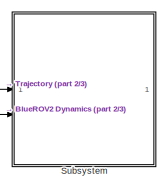
[diagram: root canvas - part 1/3, top center region]
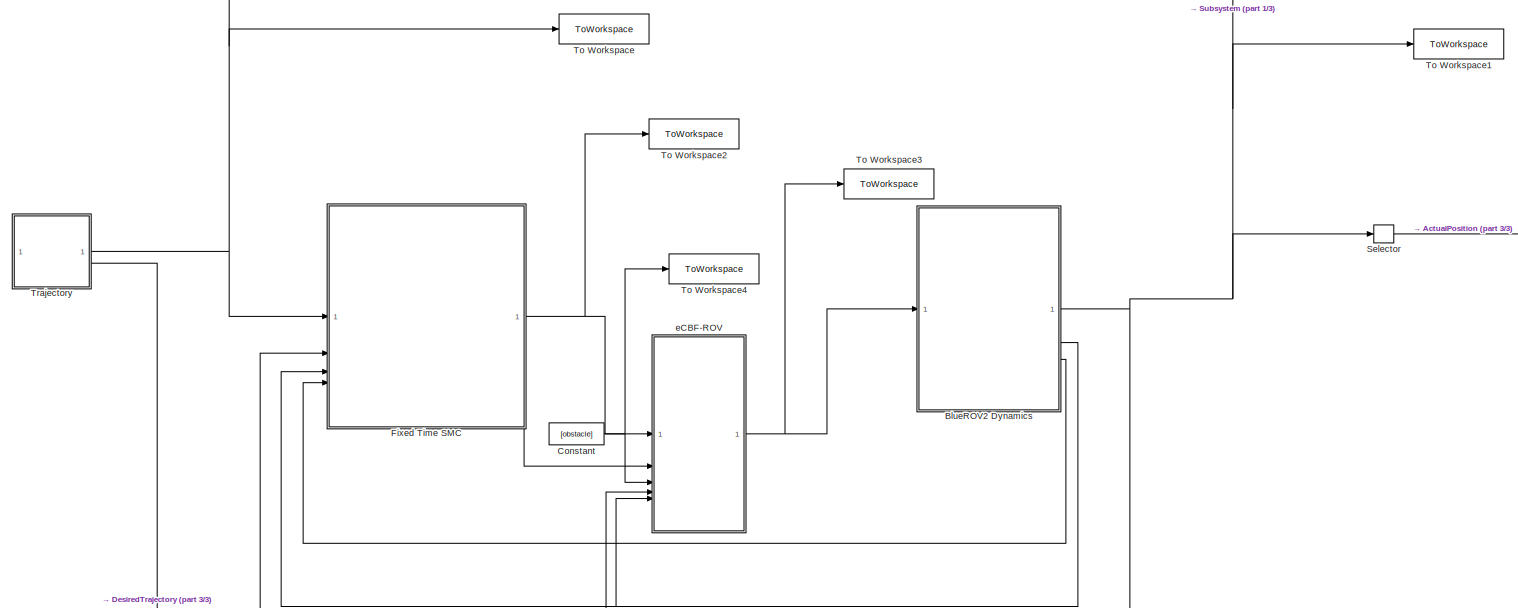
[diagram: root canvas - part 2/3, middle left region]
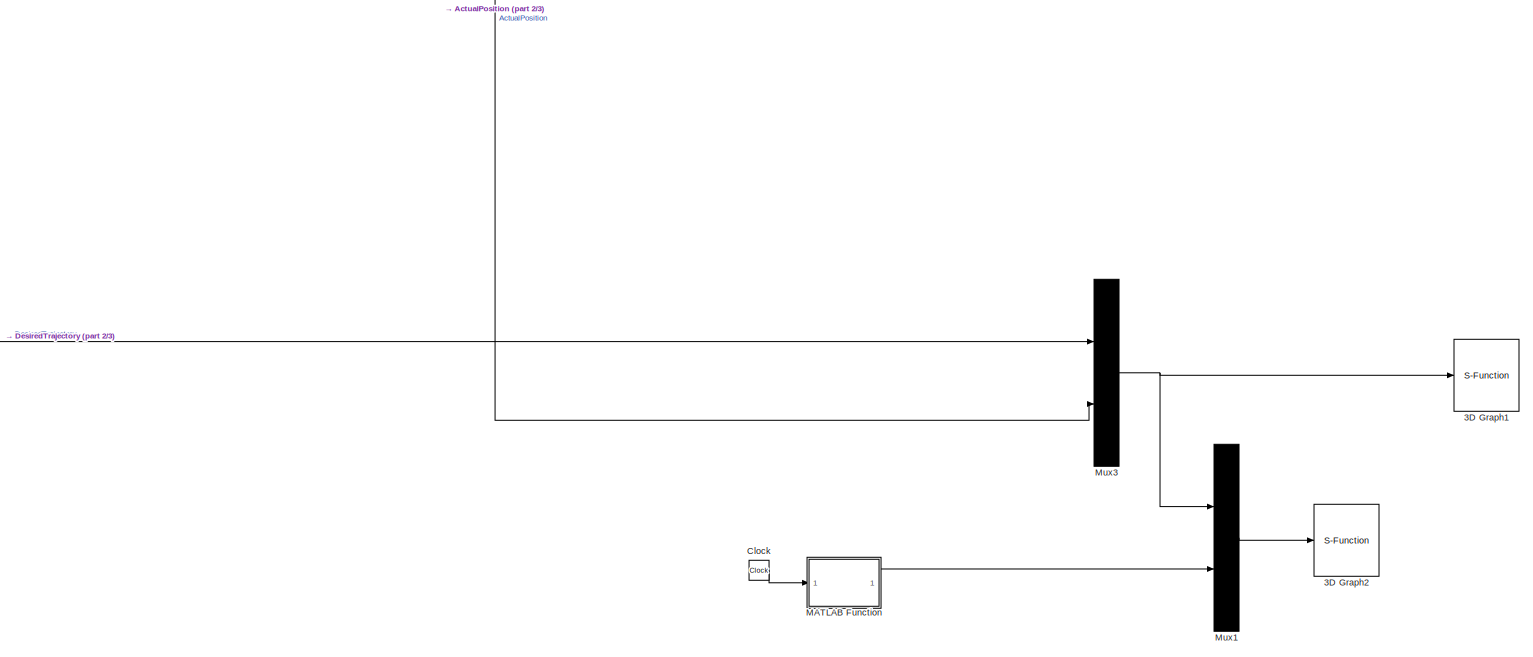
[diagram: root canvas - part 3/3, bottom right region]
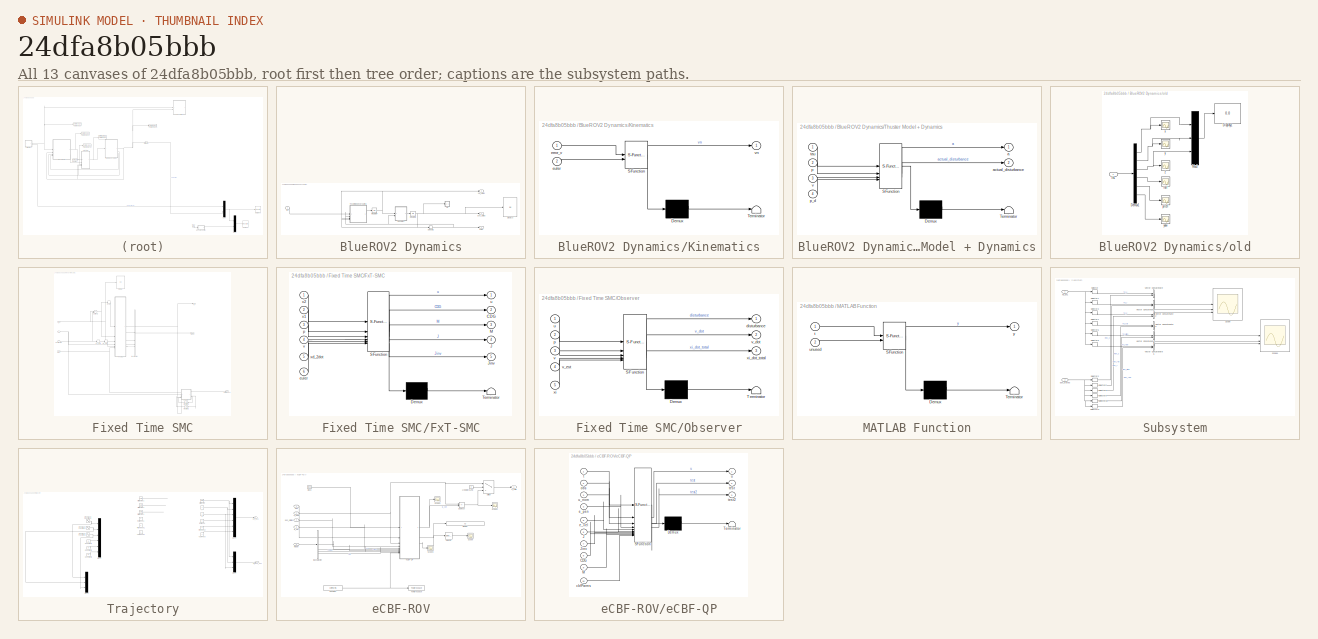
[diagram: thumbnail index - all 13 canvases of the model, root first then tree order]
MODEL slx_24dfa8b05bbb
KIND model
CONFIG AbsTol = auto
CONFIG EnableMultiTasking = off
CONFIG FixedStep = 0.010
CONFIG MaxStep = auto
CONFIG MinStep = auto
CONFIG RelTol = 1e-3
CONFIG SampleTimeConstraint = Unconstrained
CONFIG SolverName = ode4
CONFIG StartTime = 0.0
CONFIG StopTime = 35
BLOCK [S-Function] 3D Graph1
  Commented = on
  CopyFcn = if exist('sfun3d','file'), sfun3d([],[],[],'CopyBlock'); end
  DeleteFcn = if exist('sfun3d','file'), sfun3d([],[],[],'DeleteBlock'); end
  EnableBusSupport = off
  FunctionName = sfun3d
  LoadFcn = if exist('sfun3d','file'), sfun3d([],[],[],'LoadBlock'); end
  NameChangeFcn = if exist('sfun3d','file'), sfun3d([],[],[],'NameChange'); end
  Parameters = ax,T,np,cp,gd,ls,mk,mx,hd,tb
  SFcnIsStateOwnerBlock = off
  SFunctionDeploymentMode = off
BLOCK [S-Function] 3D Graph2
  Commented = on
  CopyFcn = if exist('sfun3d','file'), sfun3d([],[],[],'CopyBlock'); end
  DeleteFcn = if exist('sfun3d','file'), sfun3d([],[],[],'DeleteBlock'); end
  EnableBusSupport = off
  FunctionName = sfun3d
  LoadFcn = if exist('sfun3d','file'), sfun3d([],[],[],'LoadBlock'); end
  NameChangeFcn = if exist('sfun3d','file'), sfun3d([],[],[],'NameChange'); end
  Parameters = ax,T,np,cp,gd,ls,mk,mx,hd,tb
  SFcnIsStateOwnerBlock = off
  SFunctionDeploymentMode = off
BLOCK [SubSystem] BlueROV2 Dynamics
BLOCK [Display] BlueROV2 Dynamics/Display3
  Decimation = 1
BLOCK [Integrator] BlueROV2 Dynamics/Integrator7
  InitialCondition = [0 0 0 0 0 0]'
  LimitOutput = on
  LowerSaturationLimit = [-1 -1 -1 -1 -1 -1]'*2
  UpperSaturationLimit = [1 1 1 1 1 1]'*2
BLOCK [Integrator] BlueROV2 Dynamics/Integrator8
  InitialCondition = [1 1 1 0 0 0]'
BLOCK [SubSystem] BlueROV2 Dynamics/Kinematics
  ErrorFcn = Stateflow.Translate.translate
  PermitHierarchicalResolution = ExplicitOnly
  SFBlockType = MATLAB Function
  TreatAsAtomicUnit = on
BLOCK [Demux] BlueROV2 Dynamics/Kinematics/ Demux 
  Outputs = 1
BLOCK [S-Function] BlueROV2 Dynamics/Kinematics/ SFunction 
  EnableBusSupport = on
  FunctionName = sf_sfun
  PortCounts = [2 2]
  SFcnIsStateOwnerBlock = off
  SFunctionDeploymentMode = off
  Tag = Stateflow S-Function 13
BLOCK [Terminator] BlueROV2 Dynamics/Kinematics/ Terminator 
BLOCK [Inport] BlueROV2 Dynamics/Kinematics/error_v
BLOCK [Inport] BlueROV2 Dynamics/Kinematics/euler
  Port = 2
BLOCK [Outport] BlueROV2 Dynamics/Kinematics/vn
BLOCK [Selector] BlueROV2 Dynamics/Selector1
  IndexOptions = Index vector (dialog)
  Indices = 4:6
  InputPortWidth = 6
  OutputSizes = 1
BLOCK [SubSystem] BlueROV2 Dynamics/Thuster Model + Dynamics
  ErrorFcn = Stateflow.Translate.translate
  NameLocation = top
  PermitHierarchicalResolution = ExplicitOnly
  SFBlockType = MATLAB Function
  TreatAsAtomicUnit = on
BLOCK [Demux] BlueROV2 Dynamics/Thuster Model + Dynamics/ Demux 
  Outputs = 1
BLOCK [S-Function] BlueROV2 Dynamics/Thuster Model + Dynamics/ SFunction 
  EnableBusSupport = on
  FunctionName = sf_sfun
  PortCounts = [4 3]
  SFcnIsStateOwnerBlock = off
  SFunctionDeploymentMode = off
  Tag = Stateflow S-Function 14
BLOCK [Terminator] BlueROV2 Dynamics/Thuster Model + Dynamics/ Terminator 
BLOCK [Outport] BlueROV2 Dynamics/Thuster Model + Dynamics/a
BLOCK [Outport] BlueROV2 Dynamics/Thuster Model + Dynamics/actual_disturbance
  Port = 2
BLOCK [Inport] BlueROV2 Dynamics/Thuster Model + Dynamics/p
  Port = 2
BLOCK [Inport] BlueROV2 Dynamics/Thuster Model + Dynamics/p_d
  Port = 4
BLOCK [Inport] BlueROV2 Dynamics/Thuster Model + Dynamics/tau
BLOCK [Inport] BlueROV2 Dynamics/Thuster Model + Dynamics/v
  Port = 3
BLOCK [Outport] BlueROV2 Dynamics/euler
  NameLocation = right
  Port = 3
BLOCK [SubSystem] BlueROV2 Dynamics/old
  Commented = on
BLOCK [Demux] BlueROV2 Dynamics/old/Demux1
  Outputs = 6
BLOCK [Display] BlueROV2 Dynamics/old/Display1
  Decimation = 1
BLOCK [Inport] BlueROV2 Dynamics/old/In1
BLOCK [Mux] BlueROV2 Dynamics/old/Mux2
  DisplayOption = bar
  Inputs = 3
BLOCK [Scope] BlueROV2 Dynamics/old/pitch
  Floating = off
  NumInputPorts = 1
  ScopeSpecificationString = Simulink.scopes.TimeScopeBlockCfg('CurrentConfiguration', extmgr.ConfigurationSet(extmgr.Configuration('Core','General UI',true),extmgr.Configuration('Core','Source UI',true),extmgr.Configuration('Sources','WiredSimulink',true,'DataLoggingVariableName','ScopeData4'),extmgr.Configuration('Visuals','Time Domain',true,'SerializedDisplays',{struct('MinYLimReal','-0.05522','MaxYLimReal','0.49698','YLab...<+1367ch>
BLOCK [Scope] BlueROV2 Dynamics/old/roll
  Floating = off
  NumInputPorts = 1
  ScopeSpecificationString = Simulink.scopes.TimeScopeBlockCfg('CurrentConfiguration', extmgr.ConfigurationSet(extmgr.Configuration('Core','General UI',true),extmgr.Configuration('Core','Source UI',true),extmgr.Configuration('Sources','WiredSimulink',true,'DataLoggingVariableName','ScopeData7'),extmgr.Configuration('Visuals','Time Domain',true,'SerializedDisplays',{struct('MinYLimReal','-0.05012','MaxYLimReal','0.45104','YLab...<+1367ch>
BLOCK [Scope] BlueROV2 Dynamics/old/x
  Floating = off
  NumInputPorts = 1
  ScopeSpecificationString = Simulink.scopes.TimeScopeBlockCfg('CurrentConfiguration', extmgr.ConfigurationSet(extmgr.Configuration('Core','General UI',true),extmgr.Configuration('Core','Source UI',true),extmgr.Configuration('Sources','WiredSimulink',true,'DataLoggingVariableName','ScopeData11'),extmgr.Configuration('Visuals','Time Domain',true,'SerializedDisplays',{struct('MinYLimReal','-1.00000','MaxYLimReal','9.00000','YLa...<+1368ch>
BLOCK [Scope] BlueROV2 Dynamics/old/y
  Floating = off
  NumInputPorts = 1
  ScopeSpecificationString = Simulink.scopes.TimeScopeBlockCfg('CurrentConfiguration', extmgr.ConfigurationSet(extmgr.Configuration('Core','General UI',true),extmgr.Configuration('Core','Source UI',true),extmgr.Configuration('Sources','WiredSimulink',true,'DataLoggingVariableName','ScopeData12'),extmgr.Configuration('Visuals','Time Domain',true,'SerializedDisplays',{struct('MinYLimReal','-1.12501','MaxYLimReal','10.12505','YL...<+1406ch>
BLOCK [Scope] BlueROV2 Dynamics/old/yaw
  Floating = off
  NumInputPorts = 1
  ScopeSpecificationString = Simulink.scopes.TimeScopeBlockCfg('CurrentConfiguration', extmgr.ConfigurationSet(extmgr.Configuration('Core','General UI',true),extmgr.Configuration('Core','Source UI',true),extmgr.Configuration('Sources','WiredSimulink',true,'DataLoggingVariableName','ScopeData13'),extmgr.Configuration('Visuals','Time Domain',true,'SerializedDisplays',{struct('MinYLimReal','-0.06235','MaxYLimReal','0.56116','YLa...<+1368ch>
BLOCK [Scope] BlueROV2 Dynamics/old/z
  Floating = off
  NumInputPorts = 1
  ScopeSpecificationString = Simulink.scopes.TimeScopeBlockCfg('CurrentConfiguration', extmgr.ConfigurationSet(extmgr.Configuration('Core','General UI',true),extmgr.Configuration('Core','Source UI',true),extmgr.Configuration('Sources','WiredSimulink',true),extmgr.Configuration('Visuals','Time Domain',true,'SerializedDisplays',{struct('MinYLimReal','-1.125','MaxYLimReal','10.12501','YLabelReal','','MinYLimMag','0.00000','MaxYL...<+1328ch>
BLOCK [Outport] BlueROV2 Dynamics/psn_states
  NameLocation = right
BLOCK [Inport] BlueROV2 Dynamics/tau
  NameLocation = left
BLOCK [Outport] BlueROV2 Dynamics/vel_states
  NameLocation = right
  Port = 2
BLOCK [Clock] Clock
  Commented = on
BLOCK [Constant] Constant
  Value = [obstacle]
  VectorParams1D = off
BLOCK [SubSystem] Fixed Time SMC
BLOCK [Derivative] Fixed Time SMC/ e_dot
BLOCK [Derivative] Fixed Time SMC/ eb_dot3
BLOCK [Derivative] Fixed Time SMC/ eb_dot5
BLOCK [BusCreator] Fixed Time SMC/Bus Creator
  DisplayOption = bar
  InheritFromInputs = on
  Inputs = 4
BLOCK [Display] Fixed Time SMC/Display
  Decimation = 1
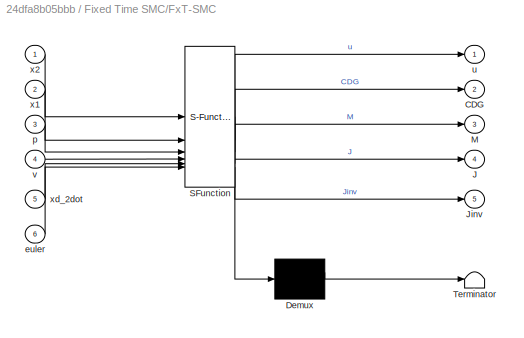
BLOCK [SubSystem] Fixed Time SMC/FxT-SMC
  ErrorFcn = Stateflow.Translate.translate
  PermitHierarchicalResolution = ExplicitOnly
  SFBlockType = MATLAB Function
  TreatAsAtomicUnit = on
BLOCK [Demux] Fixed Time SMC/FxT-SMC/ Demux 
  Outputs = 1
BLOCK [S-Function] Fixed Time SMC/FxT-SMC/ SFunction 
  EnableBusSupport = on
  FunctionName = sf_sfun
  PortCounts = [6 6]
  SFcnIsStateOwnerBlock = off
  SFunctionDeploymentMode = off
  Tag = Stateflow S-Function 11
BLOCK [Terminator] Fixed Time SMC/FxT-SMC/ Terminator 
BLOCK [Outport] Fixed Time SMC/FxT-SMC/CDG
  Port = 2
BLOCK [Outport] Fixed Time SMC/FxT-SMC/J
  Port = 4
BLOCK [Outport] Fixed Time SMC/FxT-SMC/Jinv
  Port = 5
BLOCK [Outport] Fixed Time SMC/FxT-SMC/M
  Port = 3
BLOCK [Inport] Fixed Time SMC/FxT-SMC/euler
  Port = 6
BLOCK [Inport] Fixed Time SMC/FxT-SMC/p
  Port = 3
BLOCK [Outport] Fixed Time SMC/FxT-SMC/u
BLOCK [Inport] Fixed Time SMC/FxT-SMC/v
  Port = 4
BLOCK [Inport] Fixed Time SMC/FxT-SMC/x1
  Port = 2
BLOCK [Inport] Fixed Time SMC/FxT-SMC/x2
BLOCK [Inport] Fixed Time SMC/FxT-SMC/xd_2dot
  Port = 5
BLOCK [Integrator] Fixed Time SMC/Integrator2
  Commented = on
  NameLocation = top
BLOCK [Integrator] Fixed Time SMC/Integrator3
  Commented = on
  NameLocation = top
BLOCK [SubSystem] Fixed Time SMC/Observer
  Commented = on
  ErrorFcn = Stateflow.Translate.translate
  PermitHierarchicalResolution = ExplicitOnly
  SFBlockType = MATLAB Function
  TreatAsAtomicUnit = on
BLOCK [Demux] Fixed Time SMC/Observer/ Demux 
  Outputs = 1
BLOCK [S-Function] Fixed Time SMC/Observer/ SFunction 
  EnableBusSupport = on
  FunctionName = sf_sfun
  PortCounts = [5 4]
  SFcnIsStateOwnerBlock = off
  SFunctionDeploymentMode = off
  Tag = Stateflow S-Function 1
BLOCK [Terminator] Fixed Time SMC/Observer/ Terminator 
BLOCK [Outport] Fixed Time SMC/Observer/disturbance
BLOCK [Inport] Fixed Time SMC/Observer/p
  Port = 2
BLOCK [Inport] Fixed Time SMC/Observer/u
BLOCK [Inport] Fixed Time SMC/Observer/v
  Port = 3
BLOCK [Outport] Fixed Time SMC/Observer/v_dot
  Port = 2
BLOCK [Inport] Fixed Time SMC/Observer/v_est
  Port = 4
BLOCK [Inport] Fixed Time SMC/Observer/xi
  Port = 5
BLOCK [Outport] Fixed Time SMC/Observer/xi_dot_total
  Port = 3
BLOCK [Sum] Fixed Time SMC/Subtract1
  IconShape = rectangular
  Inputs = +-
BLOCK [Inport] Fixed Time SMC/Xd Trajectory
  NameLocation = left
BLOCK [Outport] Fixed Time SMC/disturbance
  NameLocation = top
  Port = 2
BLOCK [Inport] Fixed Time SMC/euler
  NameLocation = left
  Port = 4
BLOCK [Outport] Fixed Time SMC/model
  Port = 3
BLOCK [Inport] Fixed Time SMC/p
  NameLocation = left
  Port = 2
BLOCK [Outport] Fixed Time SMC/u
BLOCK [Inport] Fixed Time SMC/v
  NameLocation = left
  Port = 3
BLOCK [SubSystem] MATLAB Function
  Commented = on
  ErrorFcn = Stateflow.Translate.translate
  PermitHierarchicalResolution = ExplicitOnly
  SFBlockType = MATLAB Function
  TreatAsAtomicUnit = on
BLOCK [Demux] MATLAB Function/ Demux 
  Outputs = 1
BLOCK [S-Function] MATLAB Function/ SFunction 
  EnableBusSupport = on
  FunctionName = sf_sfun
  PortCounts = [2 2]
  SFcnIsStateOwnerBlock = off
  SFunctionDeploymentMode = off
  Tag = Stateflow S-Function 2
BLOCK [Terminator] MATLAB Function/ Terminator 
BLOCK [Inport] MATLAB Function/t
BLOCK [Inport] MATLAB Function/unused
  Port = 2
BLOCK [Outport] MATLAB Function/y
BLOCK [Mux] Mux1
  Commented = on
  DisplayOption = bar
  Inputs = 2
BLOCK [Mux] Mux3
  DisplayOption = bar
  Inputs = 2
BLOCK [Selector] Selector
  IndexOptions = Index vector (dialog)
  Indices = 1:3
  InputPortWidth = 6
  OutputSizes = 1
BLOCK [SubSystem] Subsystem
  Commented = on
BLOCK [Scope] Subsystem/Scope
  Floating = off
  NumInputPorts = 3
  ScopeSpecificationString = Simulink.scopes.TimeScopeBlockCfg('CurrentConfiguration', extmgr.ConfigurationSet(extmgr.Configuration('Core','General UI',true),extmgr.Configuration('Core','Source UI',true),extmgr.Configuration('Sources','WiredSimulink',true,'DataLoggingVariableName','ScopeData1'),extmgr.Configuration('Visuals','Time Domain',true,'SerializedDisplays',{struct('MinYLimReal','-0.25','MaxYLimReal','12.25','YLabelRea...<+2786ch>
BLOCK [Scope] Subsystem/Scope1
  Floating = off
  NumInputPorts = 3
  ScopeSpecificationString = Simulink.scopes.TimeScopeBlockCfg('CurrentConfiguration', extmgr.ConfigurationSet(extmgr.Configuration('Core','General UI',true),extmgr.Configuration('Core','Source UI',true),extmgr.Configuration('Sources','WiredSimulink',true,'DataLoggingVariableName','ScopeData2'),extmgr.Configuration('Visuals','Time Domain',true,'SerializedDisplays',{struct('MinYLimReal','-0.00962','MaxYLimReal','0.00193','YLab...<+2783ch>
BLOCK [Selector] Subsystem/Selector
  IndexOptions = Index vector (dialog)
  Indices = 1
  InputPortWidth = 6
  OutputSizes = 1
BLOCK [Selector] Subsystem/Selector1
  IndexOptions = Index vector (dialog)
  Indices = 2
  InputPortWidth = 6
  OutputSizes = 1
BLOCK [Selector] Subsystem/Selector10
  IndexOptions = Index vector (dialog)
  Indices = 5
  InputPortWidth = 6
  OutputSizes = 1
BLOCK [Selector] Subsystem/Selector11
  IndexOptions = Index vector (dialog)
  Indices = 6
  InputPortWidth = 6
  OutputSizes = 1
BLOCK [Selector] Subsystem/Selector2
  IndexOptions = Index vector (dialog)
  Indices = 1
  InputPortWidth = 6
  OutputSizes = 1
BLOCK [Selector] Subsystem/Selector3
  IndexOptions = Index vector (dialog)
  Indices = 3
  InputPortWidth = 6
  OutputSizes = 1
BLOCK [Selector] Subsystem/Selector4
  IndexOptions = Index vector (dialog)
  Indices = 4
  InputPortWidth = 6
  OutputSizes = 1
BLOCK [Selector] Subsystem/Selector5
  IndexOptions = Index vector (dialog)
  Indices = 5
  InputPortWidth = 6
  OutputSizes = 1
BLOCK [Selector] Subsystem/Selector6
  IndexOptions = Index vector (dialog)
  Indices = 6
  InputPortWidth = 6
  OutputSizes = 1
BLOCK [Selector] Subsystem/Selector7
  IndexOptions = Index vector (dialog)
  Indices = 2
  InputPortWidth = 6
  OutputSizes = 1
BLOCK [Selector] Subsystem/Selector8
  IndexOptions = Index vector (dialog)
  Indices = 3
  InputPortWidth = 6
  OutputSizes = 1
BLOCK [Selector] Subsystem/Selector9
  IndexOptions = Index vector (dialog)
  Indices = 4
  InputPortWidth = 6
  OutputSizes = 1
BLOCK [Concatenate] Subsystem/Vector Concatenate
BLOCK [Concatenate] Subsystem/Vector Concatenate1
BLOCK [Concatenate] Subsystem/Vector Concatenate2
BLOCK [Concatenate] Subsystem/Vector Concatenate3
BLOCK [Concatenate] Subsystem/Vector Concatenate4
BLOCK [Concatenate] Subsystem/Vector Concatenate5
BLOCK [Inport] Subsystem/Xd_6x1
BLOCK [Inport] Subsystem/psn_states
  Port = 2
BLOCK [ToWorkspace] To Workspace
  FixptAsFi = on
  MaxDataPoints = inf
  SampleTime = -1
  SaveFormat = Timeseries
  VariableName = trajectory
BLOCK [ToWorkspace] To Workspace1
  FixptAsFi = on
  MaxDataPoints = inf
  SampleTime = -1
  SaveFormat = Timeseries
  VariableName = state
BLOCK [ToWorkspace] To Workspace2
  FixptAsFi = on
  MaxDataPoints = inf
  SampleTime = -1
  SaveFormat = Timeseries
  VariableName = u_nom
BLOCK [ToWorkspace] To Workspace3
  FixptAsFi = on
  MaxDataPoints = inf
  SampleTime = -1
  SaveFormat = Timeseries
  VariableName = u_cbf
BLOCK [ToWorkspace] To Workspace4
  FixptAsFi = on
  MaxDataPoints = 1
  SampleTime = -1
  VariableName = obstacle
BLOCK [SubSystem] Trajectory
BLOCK [Constant] Trajectory/Constant1
  Commented = on
  Value = 0.4
BLOCK [Constant] Trajectory/Constant2
  Commented = on
  Value = 0.4
BLOCK [Constant] Trajectory/Constant6
  Commented = on
  Value = 0.4
BLOCK [Mux] Trajectory/Mux1
  DisplayOption = bar
  Inputs = 6
BLOCK [Mux] Trajectory/Mux2
  Commented = on
  DisplayOption = bar
  Inputs = 6
BLOCK [Mux] Trajectory/Mux3
  Commented = on
  DisplayOption = bar
  Inputs = 3
BLOCK [Mux] Trajectory/Mux4
  DisplayOption = bar
  Inputs = 3
BLOCK [Constant] Trajectory/Pitch pose
  NameLocation = left
  Value = 0
BLOCK [Constant] Trajectory/Pitch pose1
  Commented = on
  NameLocation = left
  Value = 0
BLOCK [Constant] Trajectory/Roll pose
  NameLocation = left
  Value = 0
BLOCK [Constant] Trajectory/Roll pose1
  Commented = on
  NameLocation = left
  Value = 0
BLOCK [Sin] Trajectory/Sine Wave Function3
  Amplitude = 3
  Bias = 5
  Commented = on
  Frequency = 0.2
  SampleTime = 0
BLOCK [Sin] Trajectory/Sine Wave Function4
  Amplitude = 4
  Bias = 5
  Commented = on
  Frequency = 0.3
  Phase = pi/2
  SampleTime = 0
BLOCK [Sin] Trajectory/Sine Wave Function5
  Amplitude = 4
  Bias = 5
  Commented = on
  Frequency = 0.25
  SampleTime = 0
BLOCK [Outport] Trajectory/Trj_psn_3x1
  NameLocation = right
  Port = 2
BLOCK [Reference] Trajectory/X-trajectory  REF=simulink/Sources/Ramp
  NameLocation = left
  SourceBlock = simulink/Sources/Ramp
  SourceType = Ramp
BLOCK [Reference] Trajectory/X-trajectory1  REF=simulink/Sources/Ramp
  Commented = on
  NameLocation = left
  SourceBlock = simulink/Sources/Ramp
  SourceType = Ramp
BLOCK [Outport] Trajectory/Xd_6x1
  NameLocation = right
BLOCK [Reference] Trajectory/Y-trajectory1  REF=simulink/Sources/Ramp
  Commented = on
  NameLocation = left
  SourceBlock = simulink/Sources/Ramp
  SourceType = Ramp
BLOCK [Constant] Trajectory/Yaw Pose
  NameLocation = left
  Value = 0
BLOCK [Constant] Trajectory/Yaw Pose1
  Commented = on
  NameLocation = left
  Value = 0
BLOCK [Reference] Trajectory/Z-trajectory1  REF=simulink/Sources/Ramp
  Commented = on
  NameLocation = left
  SourceBlock = simulink/Sources/Ramp
  SourceType = Ramp
BLOCK [Constant] Trajectory/y
  NameLocation = left
  Value = 0
BLOCK [Constant] Trajectory/z
  NameLocation = left
  Value = 0
BLOCK [SubSystem] eCBF-ROV
BLOCK [Constant] eCBF-ROV/1 = NOM 0 = SAFE
  NameLocation = left
  Value = 0
BLOCK [BusSelector] eCBF-ROV/Bus Selector
  OutputSignals = J,Jinv,CDG,M
BLOCK [Clock] eCBF-ROV/Clock
BLOCK [Constant] eCBF-ROV/Constant
  Value = cbfParms
BLOCK [Display] eCBF-ROV/Display
  Commented = on
  Decimation = 1
BLOCK [Scope] eCBF-ROV/Scope
  Commented = on
  Floating = off
  NumInputPorts = 1
  ScopeSpecificationString = Simulink.scopes.TimeScopeBlockCfg('CurrentConfiguration', extmgr.ConfigurationSet(extmgr.Configuration('Core','General UI',true),extmgr.Configuration('Core','Source UI',true),extmgr.Configuration('Sources','WiredSimulink',true,'DataLoggingVariableName','ScopeData2'),extmgr.Configuration('Visuals','Time Domain',true,'SerializedDisplays',{struct('MinYLimReal','-1891.07729','MaxYLimReal','728.77123',...<+1437ch>
BLOCK [Scope] eCBF-ROV/Scope1
  Commented = on
  Floating = off
  NumInputPorts = 1
  ScopeSpecificationString = Simulink.scopes.TimeScopeBlockCfg('CurrentConfiguration', extmgr.ConfigurationSet(extmgr.Configuration('Core','General UI',true),extmgr.Configuration('Core','Source UI',true),extmgr.Configuration('Sources','WiredSimulink',true,'DataLoggingVariableName','ScopeData1'),extmgr.Configuration('Visuals','Time Domain',true,'SerializedDisplays',{struct('MinYLimReal','-18759.6451','MaxYLimReal','30903.31178...<+1518ch>
BLOCK [Scope] eCBF-ROV/Scope2
  Commented = on
  Floating = off
  NumInputPorts = 1
  ScopeSpecificationString = Simulink.scopes.TimeScopeBlockCfg('CurrentConfiguration', extmgr.ConfigurationSet(extmgr.Configuration('Core','General UI',true),extmgr.Configuration('Core','Source UI',true),extmgr.Configuration('Sources','WiredSimulink',true,'DataLoggingVariableName','ScopeData2'),extmgr.Configuration('Visuals','Time Domain',true,'SerializedDisplays',{struct('MinYLimReal','-2690.87503','MaxYLimReal','4287.54474'...<+1510ch>
BLOCK [Scope] eCBF-ROV/Scope3
  Commented = on
  Floating = off
  NumInputPorts = 1
  ScopeSpecificationString = Simulink.scopes.TimeScopeBlockCfg('CurrentConfiguration', extmgr.ConfigurationSet(extmgr.Configuration('Core','General UI',true),extmgr.Configuration('Core','Source UI',true),extmgr.Configuration('Sources','WiredSimulink',true,'DataLoggingVariableName','ScopeData1'),extmgr.Configuration('Visuals','Time Domain',true,'SerializedDisplays',{struct('MinYLimReal','-1891.07729','MaxYLimReal','728.77123',...<+1531ch>
BLOCK [Selector] eCBF-ROV/Selector
  Commented = on
  IndexOptions = Index vector (dialog)
  Indices = 4
  InputPortWidth = 4
  OutputSizes = 1
BLOCK [Sum] eCBF-ROV/Subtract
  IconShape = rectangular
  Inputs = +-
BLOCK [Switch] eCBF-ROV/Switch
  Criteria = u2 > Threshold
  InputSameDT = off
  SaturateOnIntegerOverflow = off
BLOCK [ToWorkspace] eCBF-ROV/To Workspace
  FixptAsFi = on
  MaxDataPoints = 1
  SampleTime = -1
  VariableName = cbf
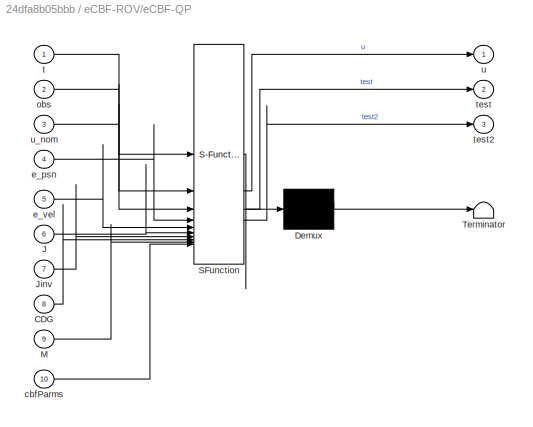
BLOCK [SubSystem] eCBF-ROV/eCBF-QP
  ErrorFcn = Stateflow.Translate.translate
  PermitHierarchicalResolution = ExplicitOnly
  SFBlockType = MATLAB Function
  TreatAsAtomicUnit = on
BLOCK [Demux] eCBF-ROV/eCBF-QP/ Demux 
  Outputs = 1
BLOCK [S-Function] eCBF-ROV/eCBF-QP/ SFunction 
  EnableBusSupport = on
  FunctionName = sf_sfun
  PortCounts = [10 4]
  SFcnIsStateOwnerBlock = off
  SFunctionDeploymentMode = off
  Tag = Stateflow S-Function 4
BLOCK [Terminator] eCBF-ROV/eCBF-QP/ Terminator 
BLOCK [Inport] eCBF-ROV/eCBF-QP/CDG
  Port = 8
BLOCK [Inport] eCBF-ROV/eCBF-QP/J
  Port = 6
BLOCK [Inport] eCBF-ROV/eCBF-QP/Jinv
  Port = 7
BLOCK [Inport] eCBF-ROV/eCBF-QP/M
  Port = 9
BLOCK [Inport] eCBF-ROV/eCBF-QP/cbfParms
  Port = 10
BLOCK [Inport] eCBF-ROV/eCBF-QP/e_psn
  Port = 4
BLOCK [Inport] eCBF-ROV/eCBF-QP/e_vel
  Port = 5
BLOCK [Inport] eCBF-ROV/eCBF-QP/obs
  Port = 2
BLOCK [Inport] eCBF-ROV/eCBF-QP/t
BLOCK [Outport] eCBF-ROV/eCBF-QP/test
  Port = 2
BLOCK [Outport] eCBF-ROV/eCBF-QP/test2
  Port = 3
BLOCK [Outport] eCBF-ROV/eCBF-QP/u
BLOCK [Inport] eCBF-ROV/eCBF-QP/u_nom
  Port = 3
BLOCK [Inport] eCBF-ROV/e_vel
  NameLocation = left
  Port = 5
BLOCK [Inport] eCBF-ROV/model
  Port = 2
BLOCK [Inport] eCBF-ROV/obs
  NameLocation = left
  Port = 3
BLOCK [Inport] eCBF-ROV/psn_states
  NameLocation = left
  Port = 4
BLOCK [Inport] eCBF-ROV/u_nom
  NameLocation = left
BLOCK [Outport] eCBF-ROV/u_safe
NET BlueROV2 Dynamics/Integrator7:1 -> BlueROV2 Dynamics/Kinematics:1, BlueROV2 Dynamics/Thuster Model + Dynamics:3, BlueROV2 Dynamics/vel_states:1
NET BlueROV2 Dynamics/Integrator8:1 -> BlueROV2 Dynamics/Display3:1, BlueROV2 Dynamics/Selector1:1, BlueROV2 Dynamics/Thuster Model + Dynamics:4, BlueROV2 Dynamics/old:1, BlueROV2 Dynamics/psn_states:1
LINE BlueROV2 Dynamics/Kinematics:1 -> BlueROV2 Dynamics/Integrator8:1
NET BlueROV2 Dynamics/Selector1:1 -> BlueROV2 Dynamics/Kinematics:2, BlueROV2 Dynamics/Thuster Model + Dynamics:2, BlueROV2 Dynamics/euler:1
LINE BlueROV2 Dynamics/Thuster Model + Dynamics:1 -> BlueROV2 Dynamics/Integrator7:1
NET BlueROV2 Dynamics/old/Demux1:1 -> BlueROV2 Dynamics/old/Mux2:1, BlueROV2 Dynamics/old/x:1
NET BlueROV2 Dynamics/old/Demux1:2 -> BlueROV2 Dynamics/old/Mux2:2, BlueROV2 Dynamics/old/y:1
NET BlueROV2 Dynamics/old/Demux1:3 -> BlueROV2 Dynamics/old/Mux2:3, BlueROV2 Dynamics/old/z:1
LINE BlueROV2 Dynamics/old/Demux1:4 -> BlueROV2 Dynamics/old/roll:1
LINE BlueROV2 Dynamics/old/Demux1:5 -> BlueROV2 Dynamics/old/pitch:1
LINE BlueROV2 Dynamics/old/Demux1:6 -> BlueROV2 Dynamics/old/yaw:1
LINE BlueROV2 Dynamics/old/In1:1 -> BlueROV2 Dynamics/old/Demux1:1
LINE BlueROV2 Dynamics/old/Mux2:1 -> BlueROV2 Dynamics/old/Display1:1
LINE BlueROV2 Dynamics/tau:1 -> BlueROV2 Dynamics/Thuster Model + Dynamics:1
NET BlueROV2 Dynamics:1 -> Fixed Time SMC:2, Selector:1, Subsystem:2, To Workspace1:1, eCBF-ROV:4
NET BlueROV2 Dynamics:2 -> Fixed Time SMC:3, eCBF-ROV:5
LINE BlueROV2 Dynamics:3 -> Fixed Time SMC:4
LINE Clock:1 -> MATLAB Function:1
NET Constant:1 -> To Workspace4:1, eCBF-ROV:3
LINE Fixed Time SMC/ e_dot:1 -> Fixed Time SMC/FxT-SMC:1
LINE Fixed Time SMC/ eb_dot3:1 -> Fixed Time SMC/FxT-SMC:5
LINE Fixed Time SMC/ eb_dot5:1 -> Fixed Time SMC/ eb_dot3:1
LINE Fixed Time SMC/Bus Creator:1 -> Fixed Time SMC/model:1
NET Fixed Time SMC/FxT-SMC:1 -> Fixed Time SMC/Observer:1, Fixed Time SMC/u:1
LINE Fixed Time SMC/FxT-SMC:2 -> Fixed Time SMC/Bus Creator:1
LINE Fixed Time SMC/FxT-SMC:3 -> Fixed Time SMC/Bus Creator:2
LINE Fixed Time SMC/FxT-SMC:4 -> Fixed Time SMC/Bus Creator:3
LINE Fixed Time SMC/FxT-SMC:5 -> Fixed Time SMC/Bus Creator:4
LINE Fixed Time SMC/Integrator2:1 -> Fixed Time SMC/Observer:4
LINE Fixed Time SMC/Integrator3:1 -> Fixed Time SMC/Observer:5
LINE Fixed Time SMC/Observer:1 -> Fixed Time SMC/disturbance:1
LINE Fixed Time SMC/Observer:2 -> Fixed Time SMC/Integrator2:1
LINE Fixed Time SMC/Observer:3 -> Fixed Time SMC/Integrator3:1
NET Fixed Time SMC/Subtract1:1 -> Fixed Time SMC/ e_dot:1, Fixed Time SMC/FxT-SMC:2
NET Fixed Time SMC/Xd Trajectory:1 -> Fixed Time SMC/ eb_dot5:1, Fixed Time SMC/Subtract1:2
NET Fixed Time SMC/euler:1 -> Fixed Time SMC/FxT-SMC:6, Fixed Time SMC/Observer:2
NET Fixed Time SMC/p:1 -> Fixed Time SMC/Display:1, Fixed Time SMC/FxT-SMC:3, Fixed Time SMC/Subtract1:1
NET Fixed Time SMC/v:1 -> Fixed Time SMC/FxT-SMC:4, Fixed Time SMC/Observer:3
NET Fixed Time SMC:1 -> To Workspace2:1, eCBF-ROV:1
LINE Fixed Time SMC:3 -> eCBF-ROV:2
LINE MATLAB Function:1 -> Mux1:2
LINE Mux1:1 -> 3D Graph2:1
NET Mux3:1 -> 3D Graph1:1, Mux1:1
LINE Selector:1 -> Mux3:2
LINE Subsystem/Selector10:1 -> Subsystem/Vector Concatenate4:2
LINE Subsystem/Selector11:1 -> Subsystem/Vector Concatenate5:2
LINE Subsystem/Selector1:1 -> Subsystem/Vector Concatenate1:1
LINE Subsystem/Selector2:1 -> Subsystem/Vector Concatenate:2
LINE Subsystem/Selector3:1 -> Subsystem/Vector Concatenate2:1
LINE Subsystem/Selector4:1 -> Subsystem/Vector Concatenate3:1
LINE Subsystem/Selector5:1 -> Subsystem/Vector Concatenate4:1
LINE Subsystem/Selector6:1 -> Subsystem/Vector Concatenate5:1
LINE Subsystem/Selector7:1 -> Subsystem/Vector Concatenate1:2
LINE Subsystem/Selector8:1 -> Subsystem/Vector Concatenate2:2
LINE Subsystem/Selector9:1 -> Subsystem/Vector Concatenate3:2
LINE Subsystem/Selector:1 -> Subsystem/Vector Concatenate:1
LINE Subsystem/Vector Concatenate1:1 -> Subsystem/Scope:2
LINE Subsystem/Vector Concatenate2:1 -> Subsystem/Scope:3
LINE Subsystem/Vector Concatenate3:1 -> Subsystem/Scope1:1
LINE Subsystem/Vector Concatenate4:1 -> Subsystem/Scope1:2
LINE Subsystem/Vector Concatenate5:1 -> Subsystem/Scope1:3
LINE Subsystem/Vector Concatenate:1 -> Subsystem/Scope:1
NET Subsystem/Xd_6x1:1 -> Subsystem/Selector1:1, Subsystem/Selector3:1, Subsystem/Selector4:1, Subsystem/Selector5:1, Subsystem/Selector6:1, Subsystem/Selector:1
NET Subsystem/psn_states:1 -> Subsystem/Selector10:1, Subsystem/Selector11:1, Subsystem/Selector2:1, Subsystem/Selector7:1, Subsystem/Selector8:1, Subsystem/Selector9:1
LINE Trajectory/Constant1:1 -> Trajectory/Mux2:4
LINE Trajectory/Constant2:1 -> Trajectory/Mux2:5
LINE Trajectory/Constant6:1 -> Trajectory/Mux2:6
LINE Trajectory/Mux1:1 -> Trajectory/Xd_6x1:1
LINE Trajectory/Mux4:1 -> Trajectory/Trj_psn_3x1:1
LINE Trajectory/Pitch pose:1 -> Trajectory/Mux1:5
LINE Trajectory/Roll pose:1 -> Trajectory/Mux1:4
NET Trajectory/Sine Wave Function3:1 -> Trajectory/Mux2:1, Trajectory/Mux3:1
NET Trajectory/Sine Wave Function4:1 -> Trajectory/Mux2:2, Trajectory/Mux3:2
NET Trajectory/Sine Wave Function5:1 -> Trajectory/Mux2:3, Trajectory/Mux3:3
NET Trajectory/X-trajectory:1 -> Trajectory/Mux1:1, Trajectory/Mux4:1
LINE Trajectory/Yaw Pose:1 -> Trajectory/Mux1:6
NET Trajectory/y:1 -> Trajectory/Mux1:2, Trajectory/Mux4:2
NET Trajectory/z:1 -> Trajectory/Mux1:3, Trajectory/Mux4:3
NET Trajectory:1 -> Fixed Time SMC:1, Subsystem:1, To Workspace:1
LINE Trajectory:2 -> Mux3:1
LINE eCBF-ROV/1 = NOM 0 = SAFE:1 -> eCBF-ROV/Switch:2
LINE eCBF-ROV/Bus Selector:1 -> eCBF-ROV/eCBF-QP:6
LINE eCBF-ROV/Bus Selector:2 -> eCBF-ROV/eCBF-QP:7
LINE eCBF-ROV/Bus Selector:3 -> eCBF-ROV/eCBF-QP:8
LINE eCBF-ROV/Bus Selector:4 -> eCBF-ROV/eCBF-QP:9
LINE eCBF-ROV/Clock:1 -> eCBF-ROV/eCBF-QP:1
NET eCBF-ROV/Constant:1 -> eCBF-ROV/To Workspace:1, eCBF-ROV/eCBF-QP:10
LINE eCBF-ROV/Selector:1 -> eCBF-ROV/Scope:1
NET eCBF-ROV/Subtract:1 -> eCBF-ROV/Scope1:1, eCBF-ROV/Switch:3
LINE eCBF-ROV/Switch:1 -> eCBF-ROV/u_safe:1
NET eCBF-ROV/eCBF-QP:1 -> eCBF-ROV/Scope2:1, eCBF-ROV/Subtract:2
NET eCBF-ROV/eCBF-QP:2 -> eCBF-ROV/Display:1, eCBF-ROV/Selector:1
LINE eCBF-ROV/eCBF-QP:3 -> eCBF-ROV/Scope3:1
LINE eCBF-ROV/e_vel:1 -> eCBF-ROV/eCBF-QP:5
LINE eCBF-ROV/model:1 -> eCBF-ROV/Bus Selector:1
LINE eCBF-ROV/obs:1 -> eCBF-ROV/eCBF-QP:2
LINE eCBF-ROV/psn_states:1 -> eCBF-ROV/eCBF-QP:4
NET eCBF-ROV/u_nom:1 -> eCBF-ROV/Subtract:1, eCBF-ROV/Switch:1, eCBF-ROV/eCBF-QP:3
NET eCBF-ROV:1 -> BlueROV2 Dynamics:1, To Workspace3:1
note: NET lines group one-source signal fan-out (src -> all destinations, sorted); 1:1 wires keep LINE
CHART Fixed Time SMC/Observer states=1 transitions=1
  STATE_LABEL 'eML_blk_kernel()'
  STATE_LABEL 'SCRIPT:\nfunction [disturbance, v_dot, xi_dot_total]= fcn(u, p, v, v_est, xi)\n\n%% Declaring variables\nm=11.5;\nW=112.8;\nB=114.8;\n\nIx=0.16;\nIy=0.16;\nIz=0.16;\n\nXu_d = -5.5;\nYv_d = -12.7;\nZw_d = -14.57;\nKp_d = -0.12;\nMq_d = -0.12;\nNr_d = -0.12;\n\nXu = -4.03;\nYv = -6.22;\nZw = -5.18;\nKp = -0.07;\nMq = -0.07;\nNr = -0.07;\n\nXuu = -18.18;\nYvv = -21.66;\nZww = -36.99;\nKpp = -1.55;\nMqq = -1.55;\nNrr = -1.55;\n\nrb =...<+3136ch>'
CHART MATLAB Function states=1 transitions=1
  STATE_LABEL 'eML_blk_kernel()'
  STATE_LABEL 'SCRIPT:\nfunction y = fcn(t,~)\n    center = [5 ; 5 ; 5];\n    radius = 0.5;\n    theta = t*10*(2*pi/10)-(pi/2);\n    traj1 = center + radius*[   0*ones(size(theta));    cos(theta);             sin(theta)              ];\n    traj2 = center + radius*[   sin(theta);             0*ones(size(theta));    cos(theta)              ];\n    traj3 = center + radius*[   cos(theta);             sin(theta);          ...<+70ch>'
CHART eCBF-ROV/eCBF-QP states=1 transitions=1
  STATE_LABEL 'eML_blk_kernel()'
  STATE_LABEL 'SCRIPT:\nfunction [u, test, test2]       = fcn(t,obs,u_nom,e_psn,e_vel,J,Jinv,CDG,M, cbfParms)\n%% debug - mute output first few timesteps\n    if t < 0.005;\n        mute    =0;\n    else\n        mute    =1;\n    end\n%% Parameters\n    tstep   = 0.001;\n\n\n%% Persistent Variables\n    persistent Jprev;\n\n    if isempty(Jprev)\n        Jprev = J;\n    end\n\n%% Derivative Variables\n\n    Jdot = (J - Jprev)/ tstep...<+3151ch>'
CHART Fixed Time SMC/FxT-SMC states=1 transitions=1
  STATE_LABEL 'eML_blk_kernel()'
  STATE_LABEL 'SCRIPT:\nfunction [u, CDG, M, J, Jinv] = fcn(x2, x1, p, v, xd_2dot, euler)\n\n%% Declaring variables\n\nm=11.5;\nW=112.8;\nB=114.8;\n\nIx=0.16;\nIy=0.16;\nIz=0.16;\n\nXu_d = -5.5;\nYv_d = -12.7;\nZw_d = -14.57;\nKp_d = -0.12;\nMq_d = -0.12;\nNr_d = -0.12;\n\nXu = -4.03;\nYv = -6.22;\nZw = -5.18;\nKp = -0.07;\nMq = -0.07;\nNr = -0.07;\n\nXuu = -18.18;\nYvv = -21.66;\nZww = -36.99;\nKpp = -1.55;\nMqq = -1.55;\nNrr = -1.55;\n\nrb = [...<+3608ch>'
CHART BlueROV2 Dynamics/Kinematics states=1 transitions=1
  STATE_LABEL 'eML_blk_kernel()'
  STATE_LABEL 'SCRIPT:\nfunction vn= fcn(error_v, euler)\n\n%% Euler transformation of velocity in the body-fixed frame to velocity in the earth-fixed frame\nJ_n = [ cos(euler(3))*cos(euler(2)),    cos(euler(3))*sin(euler(1))*sin(euler(2)) - cos(euler(1))*sin(euler(3)),    sin(euler(1))*sin(euler(3)) + cos(euler(1))*cos(euler(3))*sin(euler(2)),    0,      0,                              0                           ;...<+1369ch>'
CHART BlueROV2 Dynamics/Thuster Model + Dynamics states=1 transitions=1
  STATE_LABEL 'eML_blk_kernel()'
  STATE_LABEL 'SCRIPT:\nfunction [a, actual_disturbance]= fcn(tau, p, v, p_d)\n%% Declaring variables\n\n    m       =11.5;\n    W       =112.8;\n    B       =114.8;\n\n    Ix      =0.16;\n    Iy      =0.16;\n    Iz      =0.16;\n\n    Xu_d    = -5.5;\n    Yv_d    = -12.7;\n    Zw_d    = -14.57;\n    Kp_d    = -0.12;\n    Mq_d    = -0.12;\n    Nr_d    = -0.12;\n\n    Xu      = -4.03;\n    Yv      = -6.22;\n    Zw      = -5.18;\n    Kp...<+2881ch>'
CHART  states=0 transitions=0
CHART  states=0 transitions=0
CHART  states=0 transitions=0
CHART  states=0 transitions=0
CHART  states=0 transitions=0
CHART  states=0 transitions=0
